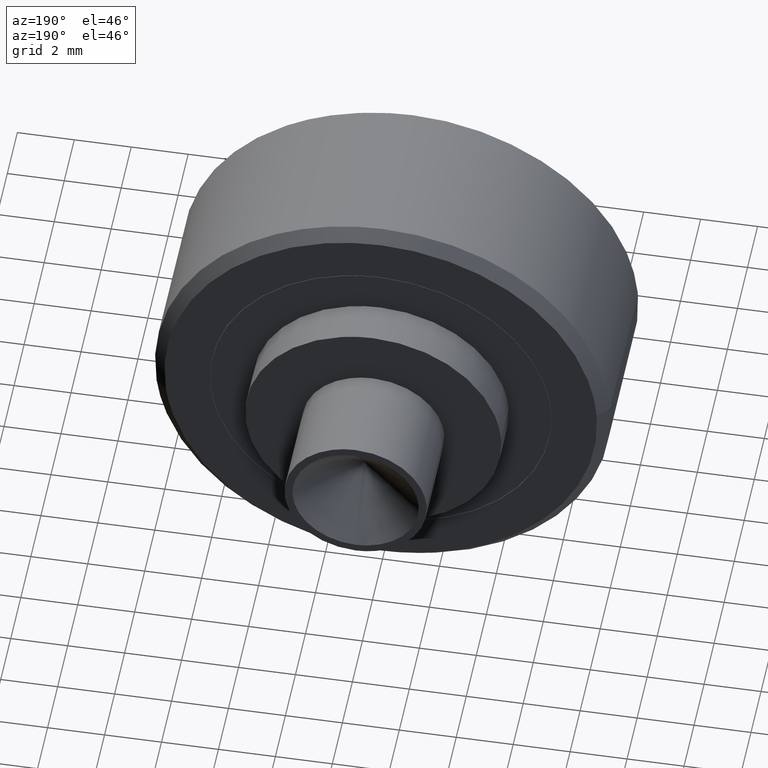
[diagram: clean part render]
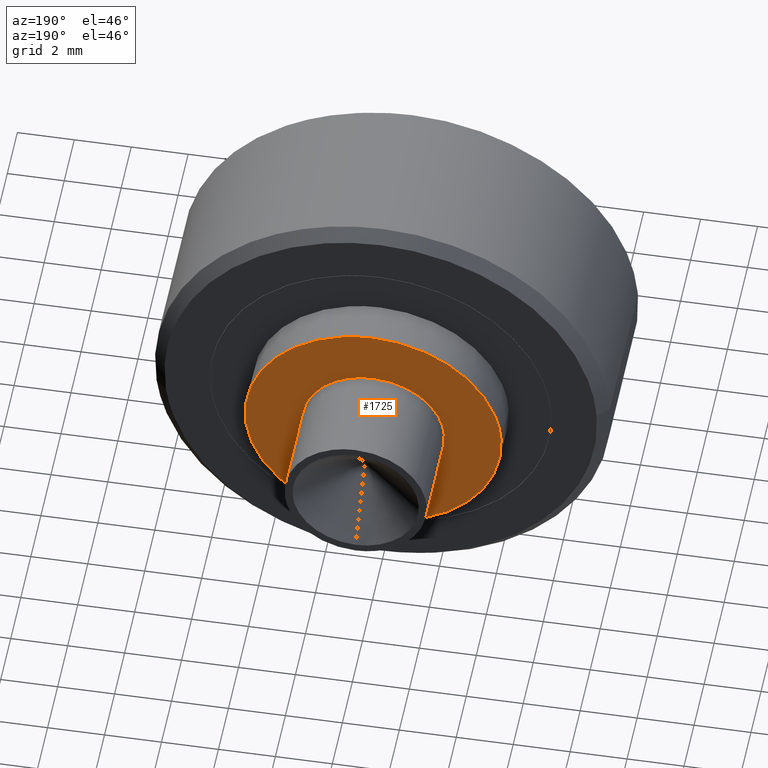
[diagram: same view with one face highlighted and labeled with its STEP entity id]
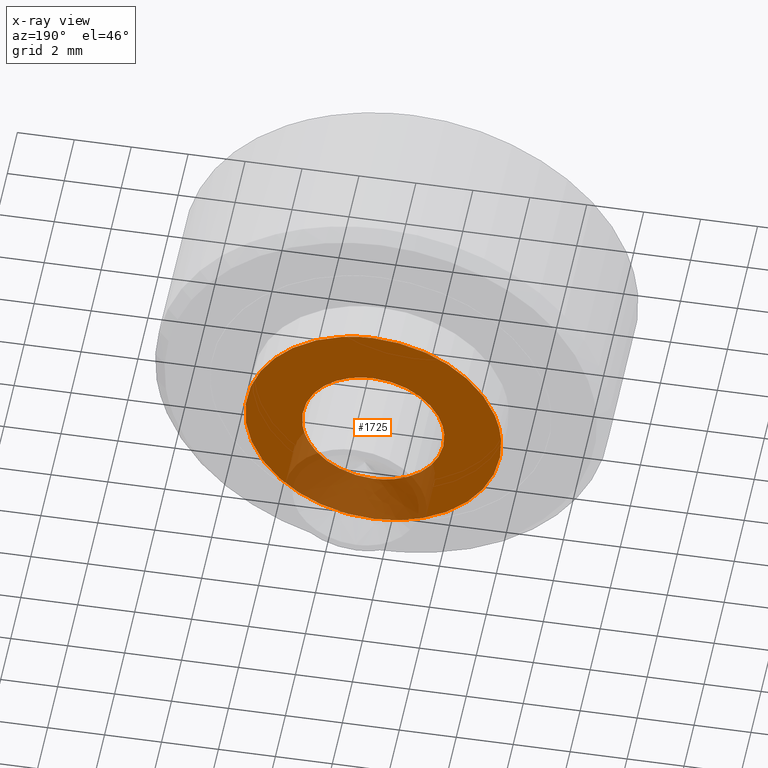
[diagram: x-ray of the same camera — body ghosted, the highlighted face saturated]
A machine part, auxiliary view. The second image highlights one B-rep face of the part: STEP entity #1725.
The next image is the same camera in x-ray: the body ghosted, the highlighted face saturated — about 25% of this face is hidden behind the body in this view.
In plain terms, the highlighted face is a freeform B-spline surface patch.
Its self-contained STEP definition (entity closure, byte-faithful):
#85=CARTESIAN_POINT('',(4.468543475337443,7.850000000000000,-0.531148951794824));
#86=VERTEX_POINT('',#85);
#92=CARTESIAN_POINT('',(0.0,7.850000000000000,4.500000000000000));
#93=VERTEX_POINT('',#92);
#94=CARTESIAN_POINT('',(4.468543475337443,7.850000000000000,-0.531148951794824));
#95=CARTESIAN_POINT('',(4.500000000000001,7.850000000000001,-0.266505959373471));
#96=CARTESIAN_POINT('',(4.500000000000000,7.850000000000000,-1.467165E-016));
#97=CARTESIAN_POINT('',(4.500000000000000,7.849999999999999,4.500000000000000));
#98=CARTESIAN_POINT('',(0.0,7.850000000000000,4.500000000000000));
#106=(BOUNDED_CURVE()B_SPLINE_CURVE(2,(#94,#95,#96,#97,#98),.UNSPECIFIED.,.F.,.U.)B_SPLINE_CURVE_WITH_KNOTS((3,2,3),(0.229562666558390,0.250000000000000,0.500000000000000),.UNSPECIFIED.)CURVE()GEOMETRIC_REPRESENTATION_ITEM()RATIONAL_B_SPLINE_CURVE((0.956027132559916,0.976056174497292,1.0,0.707106781186547,1.0))REPRESENTATION_ITEM(''));
#107=EDGE_CURVE('',#86,#93,#106,.T.);
#109=CARTESIAN_POINT('',(-4.491606925223779,7.850000000000000,0.274712994327075));
#110=VERTEX_POINT('',#109);
#111=CARTESIAN_POINT('',(0.0,7.850000000000000,4.500000000000000));
#112=CARTESIAN_POINT('',(-4.233182431600701,7.850000000000000,4.500000000000000));
#113=CARTESIAN_POINT('',(-4.491606925223779,7.850000000000000,0.274712994327075));
#121=(BOUNDED_CURVE()B_SPLINE_CURVE(2,(#111,#112,#113),.UNSPECIFIED.,.F.,.U.)B_SPLINE_CURVE_WITH_KNOTS((3,3),(0.500000000000000,0.739333170975052),.UNSPECIFIED.)CURVE()GEOMETRIC_REPRESENTATION_ITEM()RATIONAL_B_SPLINE_CURVE((1.0,0.719603748737147,0.976072489028342))REPRESENTATION_ITEM(''));
#122=EDGE_CURVE('',#93,#110,#121,.T.);
#196=CARTESIAN_POINT('',(0.0,7.850000000000000,-4.500000000000000));
#197=VERTEX_POINT('',#196);
#198=CARTESIAN_POINT('',(-4.491606925223779,7.850000000000000,0.274712994327075));
#199=CARTESIAN_POINT('',(-4.500000000000001,7.850000000000000,0.137484710436396));
#200=CARTESIAN_POINT('',(-4.500000000000000,7.850000000000000,-1.467165E-016));
#201=CARTESIAN_POINT('',(-4.500000000000000,7.849999999999999,-4.500000000000000));
#202=CARTESIAN_POINT('',(0.0,7.850000000000000,-4.500000000000000));
#210=(BOUNDED_CURVE()B_SPLINE_CURVE(2,(#198,#199,#200,#201,#202),.UNSPECIFIED.,.F.,.U.)B_SPLINE_CURVE_WITH_KNOTS((3,2,3),(0.739333170975052,0.750000000000000,1.0),.UNSPECIFIED.)CURVE()GEOMETRIC_REPRESENTATION_ITEM()RATIONAL_B_SPLINE_CURVE((0.976072489028342,0.987503032449401,1.0,0.707106781186547,1.0))REPRESENTATION_ITEM(''));
#211=EDGE_CURVE('',#110,#197,#210,.T.);
#213=CARTESIAN_POINT('',(0.0,7.850000000000000,-4.500000000000000));
#214=CARTESIAN_POINT('',(3.996789964220140,7.849999999999998,-4.500000000000001));
#215=CARTESIAN_POINT('',(4.468543475337443,7.850000000000000,-0.531148951794824));
#223=(BOUNDED_CURVE()B_SPLINE_CURVE(2,(#213,#214,#215),.UNSPECIFIED.,.F.,.U.)B_SPLINE_CURVE_WITH_KNOTS((3,3),(0.0,0.229562666558390),.UNSPECIFIED.)CURVE()GEOMETRIC_REPRESENTATION_ITEM()RATIONAL_B_SPLINE_CURVE((1.0,0.731050606689256,0.956027132559916))REPRESENTATION_ITEM(''));
#224=EDGE_CURVE('',#197,#86,#223,.T.);
#252=CARTESIAN_POINT('',(2.482524289611070,7.850000000000031,-0.295081601383317));
#253=VERTEX_POINT('',#252);
#254=CARTESIAN_POINT('',(0.0,7.850000000000000,2.500000000000000));
#255=VERTEX_POINT('',#254);
#256=CARTESIAN_POINT('',(2.482524289611070,7.850000000000031,-0.295081601383317));
#257=CARTESIAN_POINT('',(2.500000000000000,7.850000000000000,-0.148058285435143));
#258=CARTESIAN_POINT('',(2.500000000000000,7.850000000000000,-1.467165E-016));
#259=CARTESIAN_POINT('',(2.500000000000000,7.849999999999999,2.500000000000000));
#260=CARTESIAN_POINT('',(0.0,7.850000000000000,2.500000000000000));
#268=(BOUNDED_CURVE()B_SPLINE_CURVE(2,(#256,#257,#258,#259,#260),.UNSPECIFIED.,.F.,.U.)B_SPLINE_CURVE_WITH_KNOTS((3,2,3),(0.229562744820881,0.250000000000000,0.500000000000000),.UNSPECIFIED.)CURVE()GEOMETRIC_REPRESENTATION_ITEM()RATIONAL_B_SPLINE_CURVE((0.956027285957943,0.976056266187504,1.0,0.707106781186548,1.0))REPRESENTATION_ITEM(''));
#269=EDGE_CURVE('',#253,#255,#268,.T.);
#310=CARTESIAN_POINT('',(-2.495336996053892,7.850000000000000,0.152621348849819));
#311=VERTEX_POINT('',#310);
#317=CARTESIAN_POINT('',(0.0,7.850000000000000,2.500000000000000));
#318=CARTESIAN_POINT('',(-2.351765167240298,7.850000000000001,2.500000000000000));
#319=CARTESIAN_POINT('',(-2.495336996053891,7.850000000000000,0.152621348849819));
#327=(BOUNDED_CURVE()B_SPLINE_CURVE(2,(#317,#318,#319),.UNSPECIFIED.,.F.,.U.)B_SPLINE_CURVE_WITH_KNOTS((3,3),(0.500000000000000,0.739332962240215),.UNSPECIFIED.)CURVE()GEOMETRIC_REPRESENTATION_ITEM()RATIONAL_B_SPLINE_CURVE((1.0,0.719603993285220,0.976072041669444))REPRESENTATION_ITEM(''));
#328=EDGE_CURVE('',#255,#311,#327,.T.);
#355=CARTESIAN_POINT('',(0.0,7.850000000000000,-2.500000000000000));
#356=VERTEX_POINT('',#355);
#357=CARTESIAN_POINT('',(0.0,7.850000000000000,-2.500000000000000));
#358=CARTESIAN_POINT('',(2.220439904496260,7.850000000000001,-2.500000000000000));
#359=CARTESIAN_POINT('',(2.482524289611070,7.850000000000031,-0.295081601383317));
#367=(BOUNDED_CURVE()B_SPLINE_CURVE(2,(#357,#358,#359),.UNSPECIFIED.,.F.,.U.)B_SPLINE_CURVE_WITH_KNOTS((3,3),(0.0,0.229562744820881),.UNSPECIFIED.)CURVE()GEOMETRIC_REPRESENTATION_ITEM()RATIONAL_B_SPLINE_CURVE((1.0,0.731050514999044,0.956027285957943))REPRESENTATION_ITEM(''));
#368=EDGE_CURVE('',#356,#253,#367,.T.);
#370=CARTESIAN_POINT('',(-2.495336996053891,7.850000000000000,0.152621348849819));
#371=CARTESIAN_POINT('',(-2.500000000000000,7.850000000000000,0.076381908259184));
#372=CARTESIAN_POINT('',(-2.500000000000000,7.850000000000000,-1.467165E-016));
#373=CARTESIAN_POINT('',(-2.500000000000000,7.849999999999999,-2.500000000000000));
#374=CARTESIAN_POINT('',(0.0,7.850000000000000,-2.500000000000000));
#382=(BOUNDED_CURVE()B_SPLINE_CURVE(2,(#370,#371,#372,#373,#374),.UNSPECIFIED.,.F.,.U.)B_SPLINE_CURVE_WITH_KNOTS((3,2,3),(0.739332962240215,0.750000000000000,1.0),.UNSPECIFIED.)CURVE()GEOMETRIC_REPRESENTATION_ITEM()RATIONAL_B_SPLINE_CURVE((0.976072041669444,0.987502787901328,1.0,0.707106781186548,1.0))REPRESENTATION_ITEM(''));
#383=EDGE_CURVE('',#311,#356,#382,.T.);
#1708=CARTESIAN_POINT('',(-4.949440710012757,7.850000000000000,4.949549982556253));
#1709=CARTESIAN_POINT('',(-4.949440710012757,7.850000000000000,-4.949550223955065));
#1710=CARTESIAN_POINT('',(4.949468149010980,7.850000000000000,4.949549982556253));
#1711=CARTESIAN_POINT('',(4.949468149010980,7.850000000000000,-4.949550223955065));
#1712=B_SPLINE_SURFACE_WITH_KNOTS('',1,1,((#1708,#1710),(#1709,#1711)),.UNSPECIFIED.,.F.,.F.,.U.,(2,2),(2,2),(0.0,9.899100206511317),(0.0,9.898908859023738),.UNSPECIFIED.);
#1713=ORIENTED_EDGE('',*,*,#211,.F.);
#1714=ORIENTED_EDGE('',*,*,#122,.F.);
#1715=ORIENTED_EDGE('',*,*,#107,.F.);
#1716=ORIENTED_EDGE('',*,*,#224,.F.);
#1717=EDGE_LOOP('',(#1713,#1714,#1715,#1716));
#1718=FACE_OUTER_BOUND('',#1717,.T.);
#1719=ORIENTED_EDGE('',*,*,#328,.T.);
#1720=ORIENTED_EDGE('',*,*,#383,.T.);
#1721=ORIENTED_EDGE('',*,*,#368,.T.);
#1722=ORIENTED_EDGE('',*,*,#269,.T.);
#1723=EDGE_LOOP('',(#1719,#1720,#1721,#1722));
#1724=FACE_BOUND('',#1723,.T.);
#1725=ADVANCED_FACE('',(#1718,#1724),#1712,.F.);